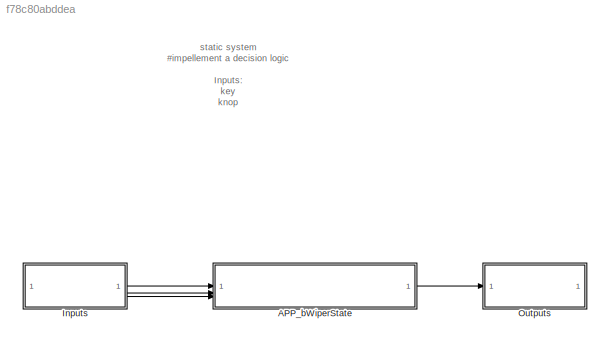
MODEL slx_f78c80abddea
KIND model
CONFIG AbsTol = auto
CONFIG EnableMultiTasking = off
CONFIG FixedStep = auto
CONFIG MaxStep = auto
CONFIG MinStep = auto
CONFIG RelTol = 1e-3
CONFIG SampleTimeConstraint = Unconstrained
CONFIG SolverName = VariableStepAuto
CONFIG StartTime = 0.0
CONFIG StopTime = 10.0
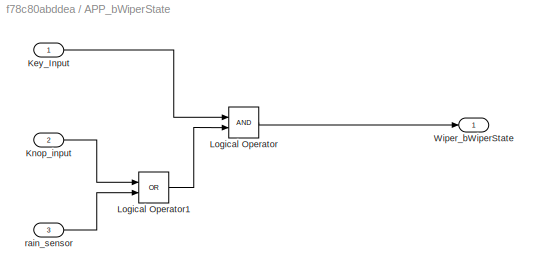
BLOCK [SubSystem] APP_bWiperState
BLOCK [Inport] APP_bWiperState/Key_Input
BLOCK [Inport] APP_bWiperState/Knop_input
  Port = 2
BLOCK [Logic] APP_bWiperState/Logical Operator
  AllPortsSameDT = off
  OutDataTypeStr = boolean
BLOCK [Logic] APP_bWiperState/Logical Operator1
  AllPortsSameDT = off
  Operator = OR
  OutDataTypeStr = boolean
BLOCK [Outport] APP_bWiperState/Wiper_bWiperState
BLOCK [Inport] APP_bWiperState/rain_sensor
  Port = 3
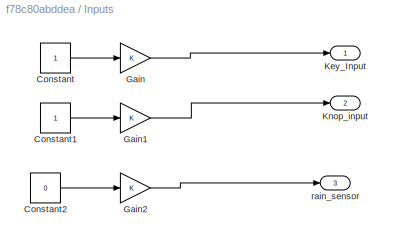
BLOCK [SubSystem] Inputs
BLOCK [Constant] Inputs/Constant
BLOCK [Constant] Inputs/Constant1
BLOCK [Constant] Inputs/Constant2
  Value = 0
BLOCK [Gain] Inputs/Gain
BLOCK [Gain] Inputs/Gain1
BLOCK [Gain] Inputs/Gain2
BLOCK [Outport] Inputs/Key_Input
BLOCK [Outport] Inputs/Knop_input
  Port = 2
BLOCK [Outport] Inputs/rain_sensor
  Port = 3
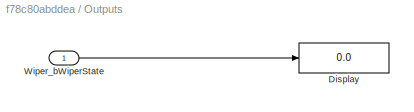
BLOCK [SubSystem] Outputs
BLOCK [Display] Outputs/Display
  Decimation = 1
BLOCK [Inport] Outputs/Wiper_bWiperState
ANNOTATION (root): static system #impellement a decision logic Inputs: key knop rain_sensor
LINE APP_bWiperState/Key_Input:1 -> APP_bWiperState/Logical Operator:1
LINE APP_bWiperState/Knop_input:1 -> APP_bWiperState/Logical Operator1:1
LINE APP_bWiperState/Logical Operator1:1 -> APP_bWiperState/Logical Operator:2
LINE APP_bWiperState/Logical Operator:1 -> APP_bWiperState/Wiper_bWiperState:1
LINE APP_bWiperState/rain_sensor:1 -> APP_bWiperState/Logical Operator1:2
LINE APP_bWiperState:1 -> Outputs:1
LINE Inputs/Constant1:1 -> Inputs/Gain1:1
LINE Inputs/Constant2:1 -> Inputs/Gain2:1
LINE Inputs/Constant:1 -> Inputs/Gain:1
LINE Inputs/Gain1:1 -> Inputs/Knop_input:1
LINE Inputs/Gain2:1 -> Inputs/rain_sensor:1
LINE Inputs/Gain:1 -> Inputs/Key_Input:1
LINE Inputs:1 -> APP_bWiperState:1
LINE Inputs:2 -> APP_bWiperState:2
LINE Inputs:3 -> APP_bWiperState:3
LINE Outputs/Wiper_bWiperState:1 -> Outputs/Display:1
